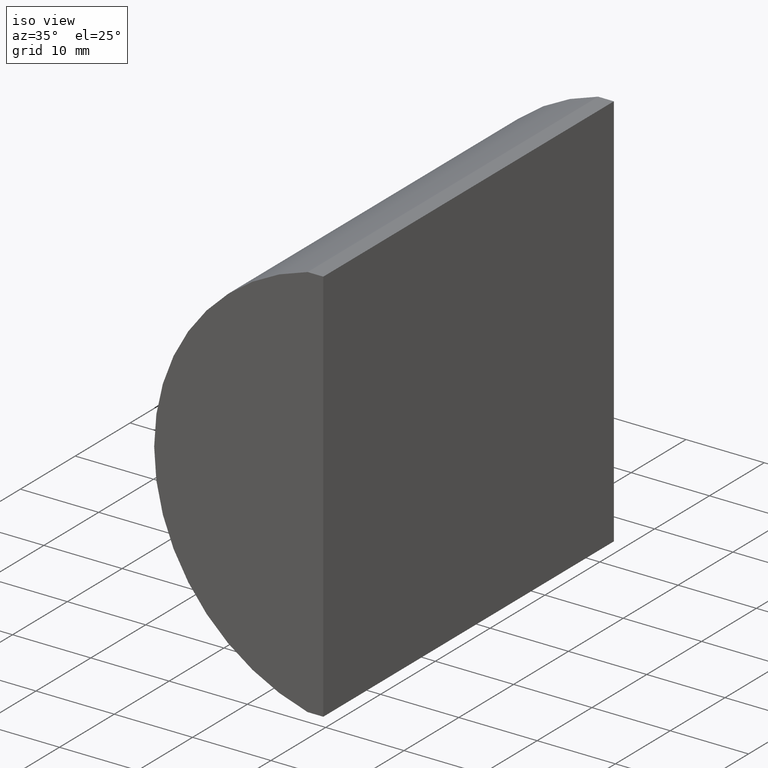
[diagram: clean part render]
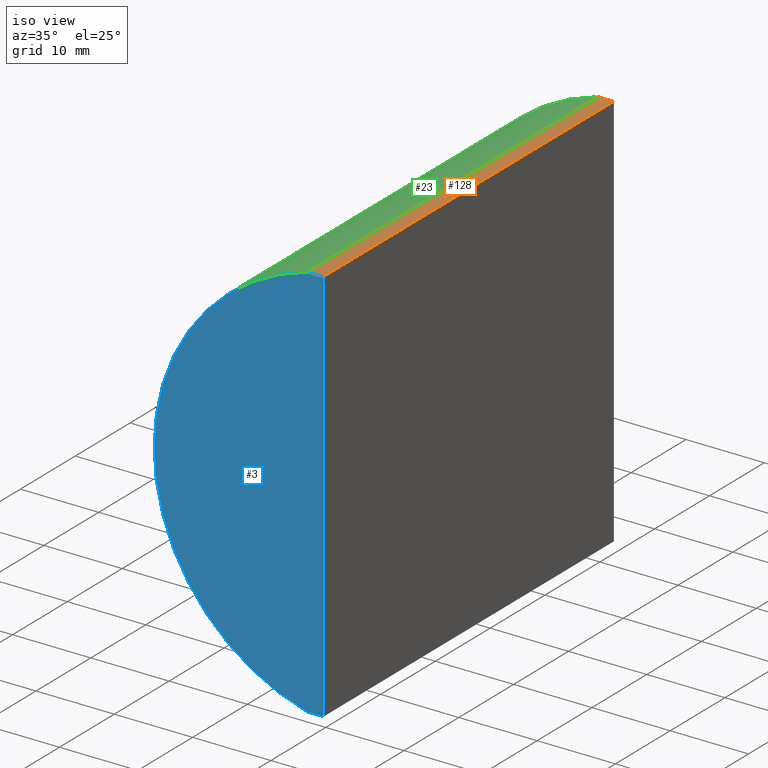
[diagram: same view with three faces highlighted in distinct colors, each labeled with its STEP entity id]
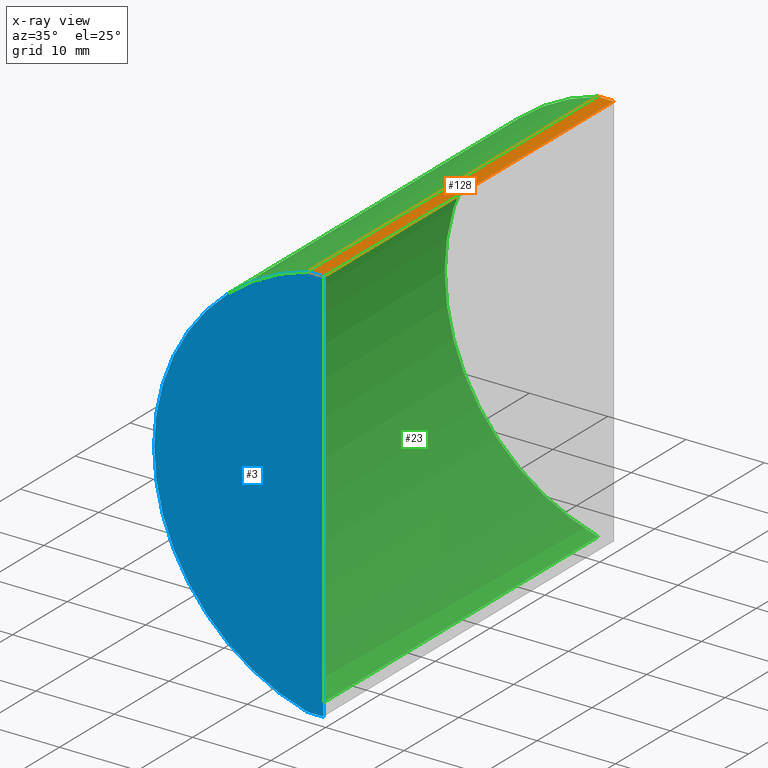
[diagram: x-ray of the same camera — body ghosted, the three highlighted faces saturated]
A machine part, iso view with three faces highlighted in distinct colors.
The next image is the same camera in x-ray (body ghosted, the three faces saturated) — at least one of them is partly hidden behind the body in this view.
Their STEP definitions:

[orange] entity #128 — the highlighted planar face has unit normal (0, 0, -1).
#8 = LINE ( 'NONE', #38, #40 ) ;
#14 = DIRECTION ( 'NONE',  ( 0.0000000000000000000, 0.0000000000000000000, -1.000000000000000000 ) ) ;
#26 = VERTEX_POINT ( 'NONE', #50 ) ;
#27 = EDGE_CURVE ( 'NONE', #82, #26, #104, .T. ) ;
#28 = CARTESIAN_POINT ( 'NONE',  ( -2.310198878758567900, 53.00000000000000000, 25.39999999999999900 ) ) ;
#29 = VECTOR ( 'NONE', #168, 1000.000000000000000 ) ;
#38 = CARTESIAN_POINT ( 'NONE',  ( -2.310198878758567900, 0.0000000000000000000, 25.39999999999999900 ) ) ;
#39 = VERTEX_POINT ( 'NONE', #136 ) ;
#40 = VECTOR ( 'NONE', #86, 1000.000000000000000 ) ;
#43 = FACE_OUTER_BOUND ( 'NONE', #97, .T. ) ;
#44 = ORIENTED_EDGE ( 'NONE', *, *, #182, .F. ) ;
#50 = CARTESIAN_POINT ( 'NONE',  ( -0.3047956651487313000, 53.00000000000000000, 25.39999999999999900 ) ) ;
#51 = PLANE ( 'NONE',  #141 ) ;
#56 = CARTESIAN_POINT ( 'NONE',  ( -2.310198878758567900, 53.00000000000000000, 25.39999999999999900 ) ) ;
#60 = LINE ( 'NONE', #28, #85 ) ;
#62 = VERTEX_POINT ( 'NONE', #186 ) ;
#73 = DIRECTION ( 'NONE',  ( -0.0000000000000000000, -1.000000000000000000, -0.0000000000000000000 ) ) ;
#82 = VERTEX_POINT ( 'NONE', #56 ) ;
#85 = VECTOR ( 'NONE', #73, 1000.000000000000000 ) ;
#86 = DIRECTION ( 'NONE',  ( 1.000000000000000000, 0.0000000000000000000, 0.0000000000000000000 ) ) ;
#95 = DIRECTION ( 'NONE',  ( 1.000000000000000000, 0.0000000000000000000, 0.0000000000000000000 ) ) ;
#97 = EDGE_LOOP ( 'NONE', ( #197, #44, #139, #199 ) ) ;
#104 = LINE ( 'NONE', #157, #172 ) ;
#127 = CARTESIAN_POINT ( 'NONE',  ( -0.3047956651487313000, 53.00000000000000000, 25.39999999999999900 ) ) ;
#128 = ADVANCED_FACE ( 'NONE', ( #43 ), #51, .F. ) ;
#130 = EDGE_CURVE ( 'NONE', #39, #62, #8, .T. ) ;
#136 = CARTESIAN_POINT ( 'NONE',  ( -2.310198878758567900, 0.0000000000000000000, 25.39999999999999900 ) ) ;
#139 = ORIENTED_EDGE ( 'NONE', *, *, #27, .F. ) ;
#141 = AXIS2_PLACEMENT_3D ( 'NONE', #188, #14, #144 ) ;
#144 = DIRECTION ( 'NONE',  ( -1.000000000000000000, 0.0000000000000000000, -0.0000000000000000000 ) ) ;
#151 = LINE ( 'NONE', #127, #29 ) ;
#157 = CARTESIAN_POINT ( 'NONE',  ( -2.310198878758567900, 53.00000000000000000, 25.39999999999999900 ) ) ;
#168 = DIRECTION ( 'NONE',  ( -0.0000000000000000000, -1.000000000000000000, -0.0000000000000000000 ) ) ;
#172 = VECTOR ( 'NONE', #95, 1000.000000000000000 ) ;
#182 = EDGE_CURVE ( 'NONE', #26, #62, #151, .T. ) ;
#186 = CARTESIAN_POINT ( 'NONE',  ( -0.3047956651487313000, 0.0000000000000000000, 25.39999999999999900 ) ) ;
#188 = CARTESIAN_POINT ( 'NONE',  ( -2.310198878758567900, 53.00000000000000000, 25.39999999999999900 ) ) ;
#189 = EDGE_CURVE ( 'NONE', #82, #39, #60, .T. ) ;
#197 = ORIENTED_EDGE ( 'NONE', *, *, #130, .T. ) ;
#199 = ORIENTED_EDGE ( 'NONE', *, *, #189, .T. ) ;

[blue] entity #3 — the highlighted planar face has unit normal (0, 1, 0).
#3 = ADVANCED_FACE ( 'NONE', ( #30 ), #135, .F. ) ;
#8 = LINE ( 'NONE', #38, #40 ) ;
#10 = VERTEX_POINT ( 'NONE', #106 ) ;
#11 = DIRECTION ( 'NONE',  ( -1.000000000000000000, -0.0000000000000000000, -0.0000000000000000000 ) ) ;
#24 = EDGE_LOOP ( 'NONE', ( #54, #116, #61, #77 ) ) ;
#30 = FACE_OUTER_BOUND ( 'NONE', #24, .T. ) ;
#33 = EDGE_CURVE ( 'NONE', #142, #10, #58, .T. ) ;
#38 = CARTESIAN_POINT ( 'NONE',  ( -2.310198878758567900, 0.0000000000000000000, 25.39999999999999900 ) ) ;
#39 = VERTEX_POINT ( 'NONE', #136 ) ;
#40 = VECTOR ( 'NONE', #86, 1000.000000000000000 ) ;
#54 = ORIENTED_EDGE ( 'NONE', *, *, #65, .F. ) ;
#58 = LINE ( 'NONE', #121, #96 ) ;
#59 = CARTESIAN_POINT ( 'NONE',  ( 4.355204334851265500, 0.0000000000000000000, 4.286263797015675000E-017 ) ) ;
#61 = ORIENTED_EDGE ( 'NONE', *, *, #114, .F. ) ;
#62 = VERTEX_POINT ( 'NONE', #186 ) ;
#64 = DIRECTION ( 'NONE',  ( 0.0000000000000000000, 0.0000000000000000000, 1.000000000000000000 ) ) ;
#65 = EDGE_CURVE ( 'NONE', #10, #39, #81, .T. ) ;
#77 = ORIENTED_EDGE ( 'NONE', *, *, #130, .F. ) ;
#81 = CIRCLE ( 'NONE', #185, 26.26000000000001200 ) ;
#83 = DIRECTION ( 'NONE',  ( 0.0000000000000000000, 1.000000000000000000, 0.0000000000000000000 ) ) ;
#86 = DIRECTION ( 'NONE',  ( 1.000000000000000000, 0.0000000000000000000, 0.0000000000000000000 ) ) ;
#89 = VECTOR ( 'NONE', #99, 1000.000000000000000 ) ;
#94 = LINE ( 'NONE', #169, #89 ) ;
#96 = VECTOR ( 'NONE', #11, 1000.000000000000000 ) ;
#99 = DIRECTION ( 'NONE',  ( -3.062657711647045300E-016, -0.0000000000000000000, -1.000000000000000000 ) ) ;
#103 = CARTESIAN_POINT ( 'NONE',  ( -0.3047956651487468400, 0.0000000000000000000, -25.39999999999999900 ) ) ;
#106 = CARTESIAN_POINT ( 'NONE',  ( -2.310198878758607000, 0.0000000000000000000, -25.39999999999999900 ) ) ;
#114 = EDGE_CURVE ( 'NONE', #62, #142, #94, .T. ) ;
#116 = ORIENTED_EDGE ( 'NONE', *, *, #33, .F. ) ;
#121 = CARTESIAN_POINT ( 'NONE',  ( -2.310198878758607000, 0.0000000000000000000, -25.39999999999999900 ) ) ;
#130 = EDGE_CURVE ( 'NONE', #39, #62, #8, .T. ) ;
#135 = PLANE ( 'NONE',  #174 ) ;
#136 = CARTESIAN_POINT ( 'NONE',  ( -2.310198878758567900, 0.0000000000000000000, 25.39999999999999900 ) ) ;
#142 = VERTEX_POINT ( 'NONE', #103 ) ;
#145 = CARTESIAN_POINT ( 'NONE',  ( 4.355204334851265500, 0.0000000000000000000, 4.286263797015675000E-017 ) ) ;
#169 = CARTESIAN_POINT ( 'NONE',  ( -0.3047956651487468400, 0.0000000000000000000, -25.39999999999999900 ) ) ;
#174 = AXIS2_PLACEMENT_3D ( 'NONE', #59, #193, #194 ) ;
#185 = AXIS2_PLACEMENT_3D ( 'NONE', #145, #83, #64 ) ;
#186 = CARTESIAN_POINT ( 'NONE',  ( -0.3047956651487313000, 0.0000000000000000000, 25.39999999999999900 ) ) ;
#193 = DIRECTION ( 'NONE',  ( 0.0000000000000000000, 1.000000000000000000, 0.0000000000000000000 ) ) ;
#194 = DIRECTION ( 'NONE',  ( 0.0000000000000000000, -0.0000000000000000000, 1.000000000000000000 ) ) ;

[green] entity #23 — the highlighted cylindrical surface (partial cylindrical patch) has radius 26.26 mm, axis along (-0, -1, -0).
#4 = DIRECTION ( 'NONE',  ( -0.0000000000000000000, -1.000000000000000000, -0.0000000000000000000 ) ) ;
#9 = VERTEX_POINT ( 'NONE', #184 ) ;
#10 = VERTEX_POINT ( 'NONE', #106 ) ;
#13 = DIRECTION ( 'NONE',  ( 0.0000000000000000000, 1.000000000000000000, 0.0000000000000000000 ) ) ;
#16 = EDGE_CURVE ( 'NONE', #9, #82, #98, .T. ) ;
#23 = ADVANCED_FACE ( 'NONE', ( #158 ), #122, .T. ) ;
#28 = CARTESIAN_POINT ( 'NONE',  ( -2.310198878758567900, 53.00000000000000000, 25.39999999999999900 ) ) ;
#35 = EDGE_LOOP ( 'NONE', ( #131, #100, #69, #93 ) ) ;
#36 = DIRECTION ( 'NONE',  ( -0.0000000000000000000, -1.000000000000000000, -0.0000000000000000000 ) ) ;
#39 = VERTEX_POINT ( 'NONE', #136 ) ;
#45 = AXIS2_PLACEMENT_3D ( 'NONE', #200, #13, #63 ) ;
#56 = CARTESIAN_POINT ( 'NONE',  ( -2.310198878758567900, 53.00000000000000000, 25.39999999999999900 ) ) ;
#60 = LINE ( 'NONE', #28, #85 ) ;
#63 = DIRECTION ( 'NONE',  ( 0.0000000000000000000, 0.0000000000000000000, 1.000000000000000000 ) ) ;
#64 = DIRECTION ( 'NONE',  ( 0.0000000000000000000, 0.0000000000000000000, 1.000000000000000000 ) ) ;
#65 = EDGE_CURVE ( 'NONE', #10, #39, #81, .T. ) ;
#67 = CARTESIAN_POINT ( 'NONE',  ( 4.355204334851265500, 53.00000000000000000, 4.286263797015675000E-017 ) ) ;
#69 = ORIENTED_EDGE ( 'NONE', *, *, #16, .F. ) ;
#73 = DIRECTION ( 'NONE',  ( -0.0000000000000000000, -1.000000000000000000, -0.0000000000000000000 ) ) ;
#81 = CIRCLE ( 'NONE', #185, 26.26000000000001200 ) ;
#82 = VERTEX_POINT ( 'NONE', #56 ) ;
#83 = DIRECTION ( 'NONE',  ( 0.0000000000000000000, 1.000000000000000000, 0.0000000000000000000 ) ) ;
#85 = VECTOR ( 'NONE', #73, 1000.000000000000000 ) ;
#93 = ORIENTED_EDGE ( 'NONE', *, *, #170, .T. ) ;
#98 = CIRCLE ( 'NONE', #45, 26.26000000000001200 ) ;
#100 = ORIENTED_EDGE ( 'NONE', *, *, #189, .F. ) ;
#106 = CARTESIAN_POINT ( 'NONE',  ( -2.310198878758607000, 0.0000000000000000000, -25.39999999999999900 ) ) ;
#122 = CYLINDRICAL_SURFACE ( 'NONE', #171, 26.26000000000001200 ) ;
#131 = ORIENTED_EDGE ( 'NONE', *, *, #65, .T. ) ;
#134 = DIRECTION ( 'NONE',  ( 0.0000000000000000000, 0.0000000000000000000, -1.000000000000000000 ) ) ;
#136 = CARTESIAN_POINT ( 'NONE',  ( -2.310198878758567900, 0.0000000000000000000, 25.39999999999999900 ) ) ;
#145 = CARTESIAN_POINT ( 'NONE',  ( 4.355204334851265500, 0.0000000000000000000, 4.286263797015675000E-017 ) ) ;
#150 = CARTESIAN_POINT ( 'NONE',  ( -2.310198878758607000, 53.00000000000000000, -25.39999999999999900 ) ) ;
#156 = VECTOR ( 'NONE', #36, 1000.000000000000000 ) ;
#158 = FACE_OUTER_BOUND ( 'NONE', #35, .T. ) ;
#170 = EDGE_CURVE ( 'NONE', #9, #10, #192, .T. ) ;
#171 = AXIS2_PLACEMENT_3D ( 'NONE', #67, #4, #134 ) ;
#184 = CARTESIAN_POINT ( 'NONE',  ( -2.310198878758607000, 53.00000000000000000, -25.39999999999999900 ) ) ;
#185 = AXIS2_PLACEMENT_3D ( 'NONE', #145, #83, #64 ) ;
#189 = EDGE_CURVE ( 'NONE', #82, #39, #60, .T. ) ;
#192 = LINE ( 'NONE', #150, #156 ) ;
#200 = CARTESIAN_POINT ( 'NONE',  ( 4.355204334851265500, 53.00000000000000000, 4.286263797015675000E-017 ) ) ;